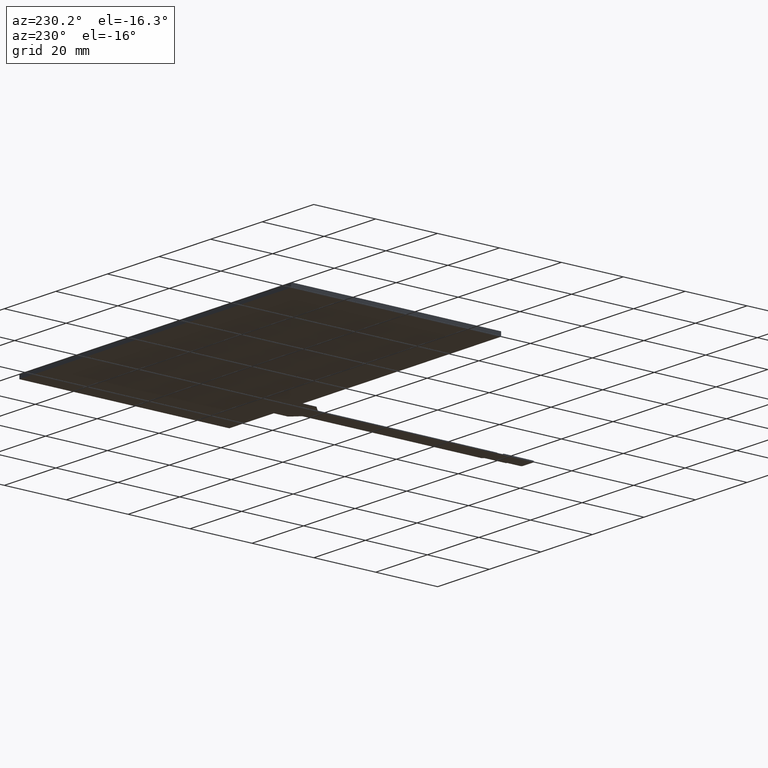
[diagram: clean part render]
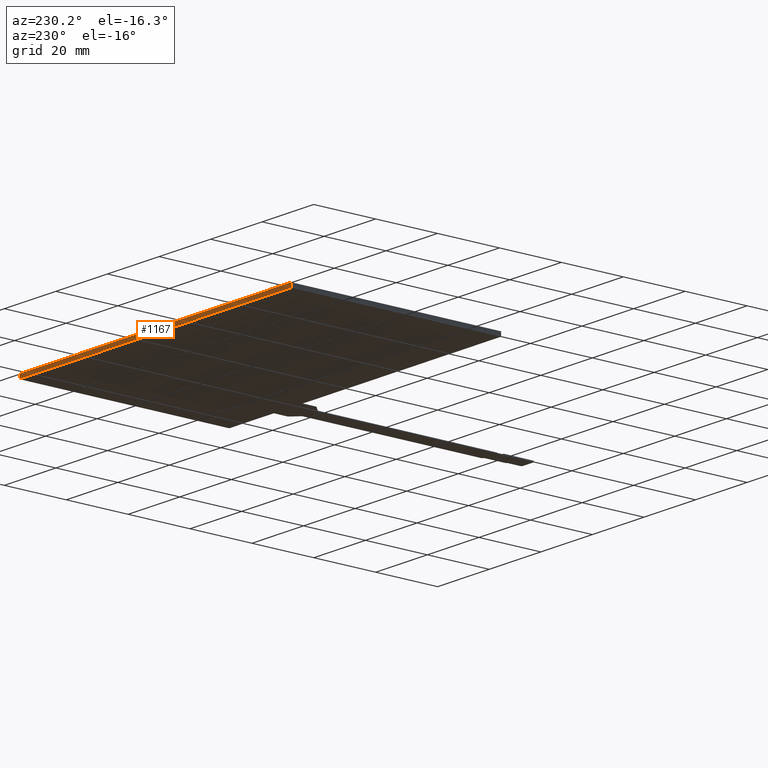
[diagram: same view with one face highlighted and labeled with its STEP entity id]
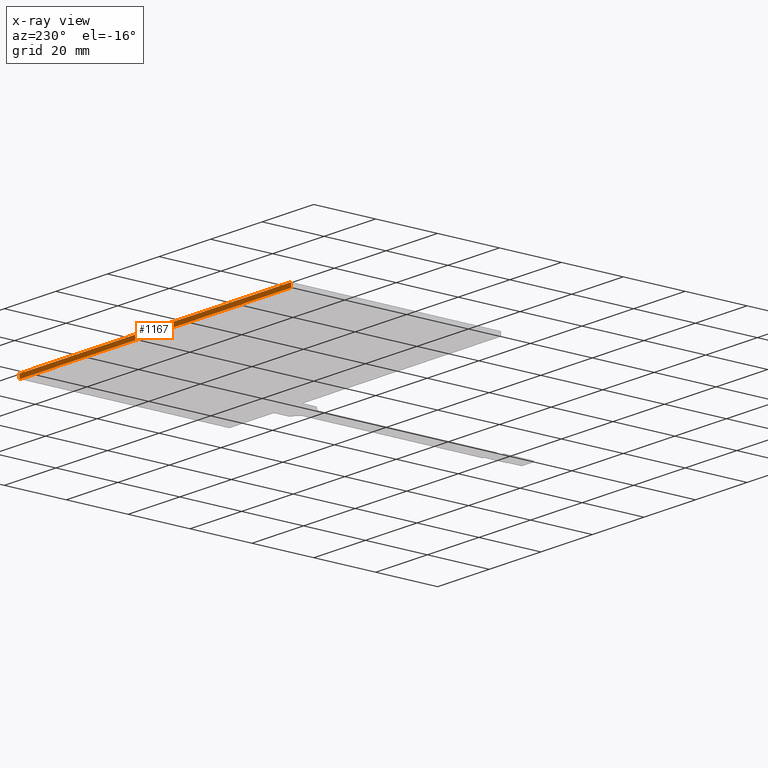
[diagram: x-ray of the same camera — body ghosted, the highlighted face saturated]
A machine part, auxiliary view. The second image highlights one B-rep face of the part: STEP entity #1167.
The next image is the same camera in x-ray: the body ghosted, the highlighted face saturated — about 0% of this face is hidden behind the body in this view.
In plain terms, the highlighted planar face has unit normal (0, 1, 0).
Its self-contained STEP definition (entity closure, byte-faithful):
#83=PLANE('',#1274);
#142=FACE_OUTER_BOUND('',#204,.T.);
#204=EDGE_LOOP('',(#1085,#1086,#1087,#1088));
#329=LINE('',#1893,#463);
#333=LINE('',#1901,#467);
#339=LINE('',#1912,#473);
#340=LINE('',#1914,#474);
#463=VECTOR('',#1563,10.);
#467=VECTOR('',#1569,10.);
#473=VECTOR('',#1579,10.);
#474=VECTOR('',#1582,10.);
#603=VERTEX_POINT('',#1891);
#604=VERTEX_POINT('',#1892);
#607=VERTEX_POINT('',#1900);
#610=VERTEX_POINT('',#1910);
#761=EDGE_CURVE('',#603,#604,#329,.T.);
#765=EDGE_CURVE('',#604,#607,#333,.T.);
#771=EDGE_CURVE('',#603,#610,#339,.T.);
#772=EDGE_CURVE('',#607,#610,#340,.T.);
#1085=ORIENTED_EDGE('',*,*,#761,.F.);
#1086=ORIENTED_EDGE('',*,*,#771,.T.);
#1087=ORIENTED_EDGE('',*,*,#772,.F.);
#1088=ORIENTED_EDGE('',*,*,#765,.F.);
#1167=ADVANCED_FACE('',(#142),#83,.T.);
#1274=AXIS2_PLACEMENT_3D('',#1913,#1580,#1581);
#1563=DIRECTION('',(-1.,0.,0.));
#1569=DIRECTION('',(0.,0.,-1.));
#1579=DIRECTION('',(0.,0.,-1.));
#1580=DIRECTION('center_axis',(0.,1.,0.));
#1581=DIRECTION('ref_axis',(1.,0.,0.));
#1582=DIRECTION('',(1.,0.,0.));
#1891=CARTESIAN_POINT('',(52.65,31.28,0.));
#1892=CARTESIAN_POINT('',(-52.75,31.28,0.));
#1893=CARTESIAN_POINT('',(52.65,31.28,0.));
#1900=CARTESIAN_POINT('',(-52.75,31.28,-1.4));
#1901=CARTESIAN_POINT('',(-52.75,31.28,0.));
#1910=CARTESIAN_POINT('',(52.65,31.28,-1.4));
#1912=CARTESIAN_POINT('',(52.65,31.28,0.));
#1913=CARTESIAN_POINT('Origin',(-52.75,31.28,0.));
#1914=CARTESIAN_POINT('',(52.65,31.28,-1.4));